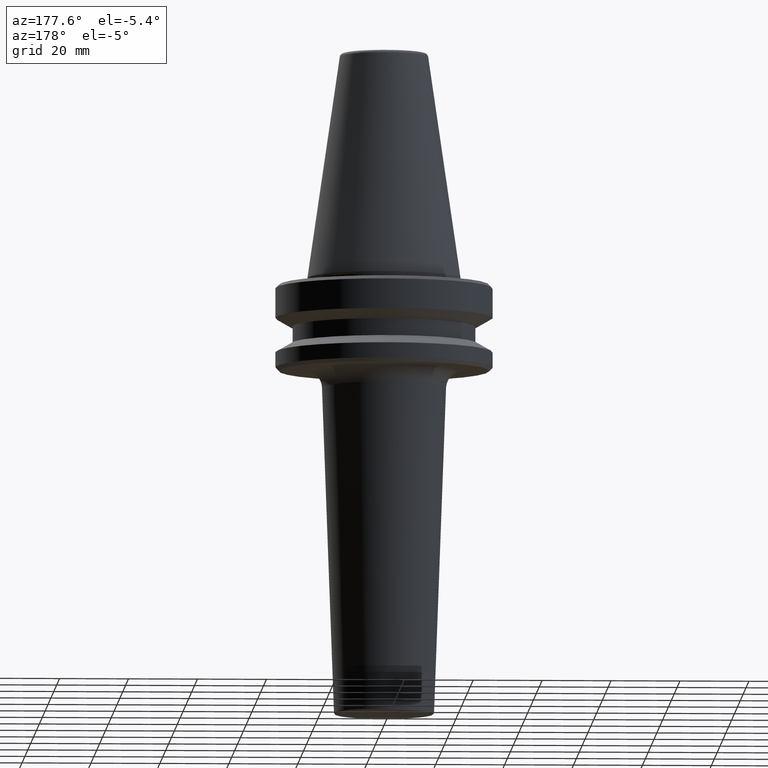
[diagram: clean part render]
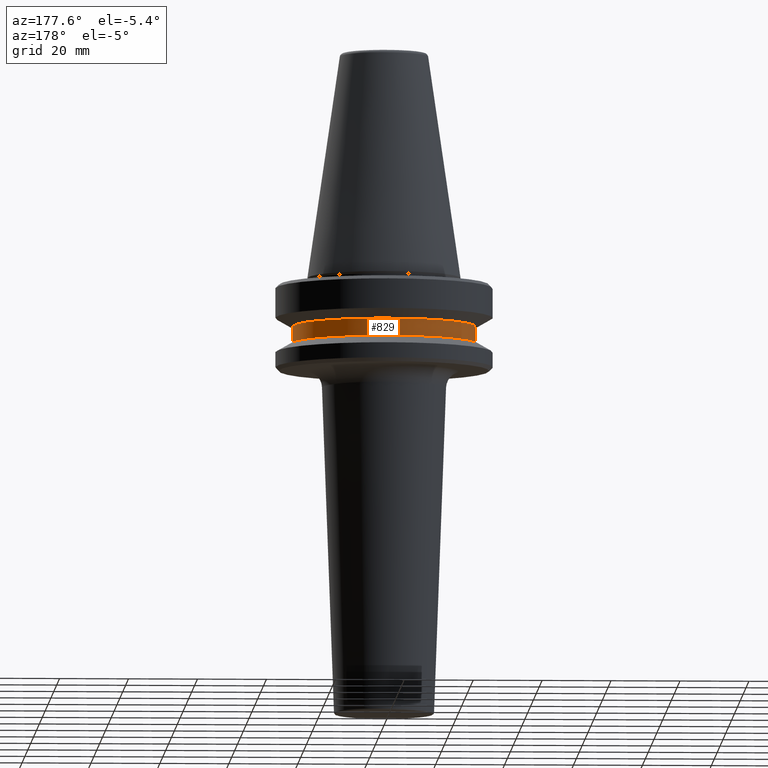
[diagram: same view with one face highlighted and labeled with its STEP entity id]
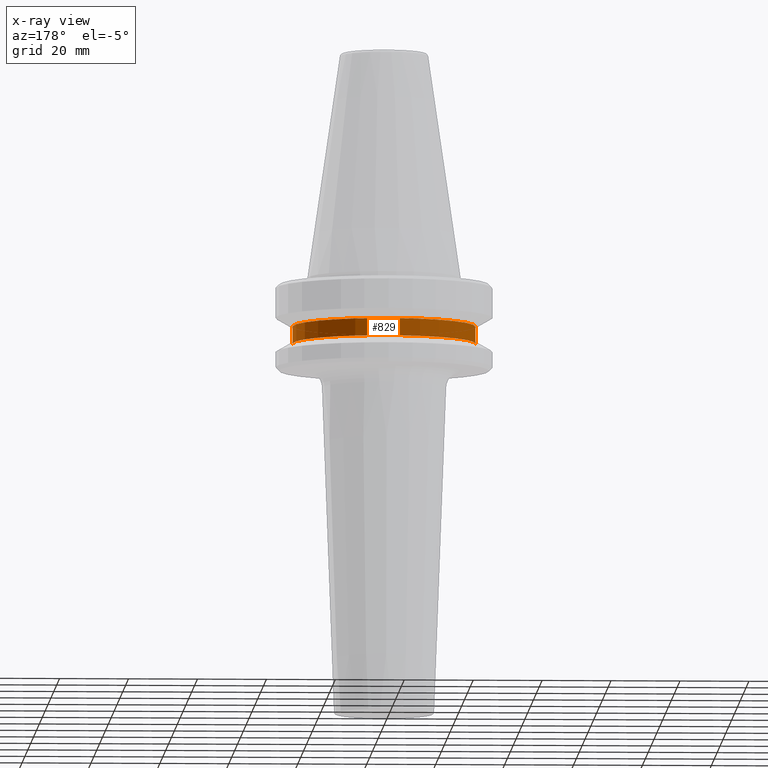
[diagram: x-ray of the same camera — body ghosted, the highlighted face saturated]
A machine part, auxiliary view. The second image highlights one B-rep face of the part: STEP entity #829.
The next image is the same camera in x-ray: the body ghosted, the highlighted face saturated — about 0% of this face is hidden behind the body in this view.
In plain terms, the highlighted cylindrical surface (partial cylindrical patch) has radius 26.5 mm, axis along (-0, -0, 1).
Its self-contained STEP definition (entity closure, byte-faithful):
#4 = CARTESIAN_POINT ( 'NONE',  ( 0.0000000000000000000, 0.0000000000000000000, -79.50000000000012800 ) ) ;
#8 = EDGE_CURVE ( 'NONE', #39, #533, #828, .T. ) ;
#39 = VERTEX_POINT ( 'NONE', #984 ) ;
#43 = AXIS2_PLACEMENT_3D ( 'NONE', #69, #980, #500 ) ;
#69 = CARTESIAN_POINT ( 'NONE',  ( 0.0000000000000000000, 0.0000000000000000000, -84.50000000000068200 ) ) ;
#71 = EDGE_CURVE ( 'NONE', #726, #767, #269, .T. ) ;
#97 = LINE ( 'NONE', #134, #916 ) ;
#103 = CARTESIAN_POINT ( 'NONE',  ( -26.50000000000019200, 3.245314017740509400E-015, -84.50000000000068200 ) ) ;
#113 = CYLINDRICAL_SURFACE ( 'NONE', #855, 26.50000000000019200 ) ;
#114 = CARTESIAN_POINT ( 'NONE',  ( 0.0000000000000000000, 0.0000000000000000000, 6.357346922996331500 ) ) ;
#134 = CARTESIAN_POINT ( 'NONE',  ( -26.50000000000019200, 3.245314017740509400E-015, 6.357346922996331500 ) ) ;
#154 = AXIS2_PLACEMENT_3D ( 'NONE', #4, #259, #230 ) ;
#218 = EDGE_CURVE ( 'NONE', #39, #726, #440, .T. ) ;
#230 = DIRECTION ( 'NONE',  ( 1.000000000000000000, 0.0000000000000000000, 0.0000000000000000000 ) ) ;
#259 = DIRECTION ( 'NONE',  ( -0.0000000000000000000, -0.0000000000000000000, 1.000000000000000000 ) ) ;
#269 = CIRCLE ( 'NONE', #154, 26.50000000000019200 ) ;
#289 = ORIENTED_EDGE ( 'NONE', *, *, #218, .F. ) ;
#303 = DIRECTION ( 'NONE',  ( -0.0000000000000000000, -0.0000000000000000000, 1.000000000000000000 ) ) ;
#306 = CARTESIAN_POINT ( 'NONE',  ( 26.50000000000019200, 0.0000000000000000000, -79.50000000000012800 ) ) ;
#440 = LINE ( 'NONE', #677, #577 ) ;
#448 = ORIENTED_EDGE ( 'NONE', *, *, #921, .T. ) ;
#500 = DIRECTION ( 'NONE',  ( 1.000000000000000000, 0.0000000000000000000, 0.0000000000000000000 ) ) ;
#526 = ORIENTED_EDGE ( 'NONE', *, *, #71, .F. ) ;
#532 = DIRECTION ( 'NONE',  ( -0.0000000000000000000, -0.0000000000000000000, 1.000000000000000000 ) ) ;
#533 = VERTEX_POINT ( 'NONE', #103 ) ;
#570 = FACE_OUTER_BOUND ( 'NONE', #876, .T. ) ;
#577 = VECTOR ( 'NONE', #1048, 1000.000000000000000 ) ;
#582 = CARTESIAN_POINT ( 'NONE',  ( -26.50000000000019200, 3.245314017740509400E-015, -79.50000000000012800 ) ) ;
#630 = ORIENTED_EDGE ( 'NONE', *, *, #8, .T. ) ;
#677 = CARTESIAN_POINT ( 'NONE',  ( 26.50000000000019200, 0.0000000000000000000, 6.357346922996331500 ) ) ;
#726 = VERTEX_POINT ( 'NONE', #306 ) ;
#767 = VERTEX_POINT ( 'NONE', #582 ) ;
#828 = CIRCLE ( 'NONE', #43, 26.50000000000019200 ) ;
#829 = ADVANCED_FACE ( 'NONE', ( #570 ), #113, .T. ) ;
#855 = AXIS2_PLACEMENT_3D ( 'NONE', #114, #532, #909 ) ;
#876 = EDGE_LOOP ( 'NONE', ( #630, #448, #526, #289 ) ) ;
#909 = DIRECTION ( 'NONE',  ( 1.000000000000000000, 0.0000000000000000000, 0.0000000000000000000 ) ) ;
#916 = VECTOR ( 'NONE', #303, 1000.000000000000000 ) ;
#921 = EDGE_CURVE ( 'NONE', #533, #767, #97, .T. ) ;
#980 = DIRECTION ( 'NONE',  ( -0.0000000000000000000, -0.0000000000000000000, 1.000000000000000000 ) ) ;
#984 = CARTESIAN_POINT ( 'NONE',  ( 26.50000000000019200, 0.0000000000000000000, -84.50000000000068200 ) ) ;
#1048 = DIRECTION ( 'NONE',  ( -0.0000000000000000000, -0.0000000000000000000, 1.000000000000000000 ) ) ;